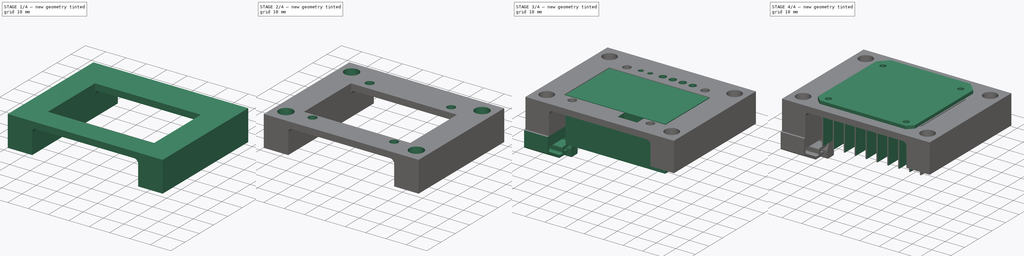
[diagram: build sequence overview — one tinted view per stage of 4, left to right]
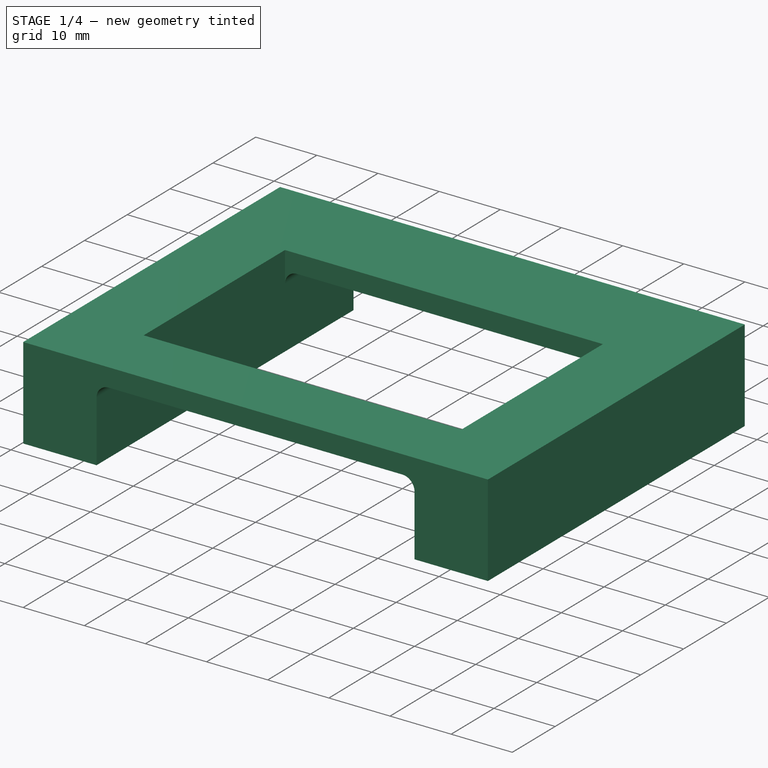
[diagram: stage 1 of 4 — iso view after this stage's code; geometry added in this stage tinted green]
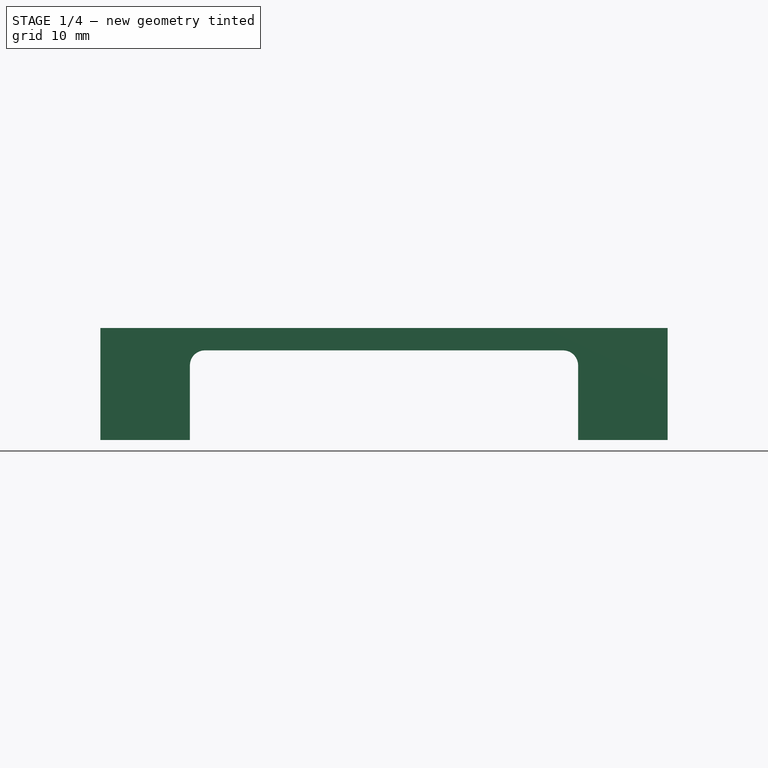
[diagram: stage 1 of 4 — front view after this stage's code; geometry added in this stage tinted green]
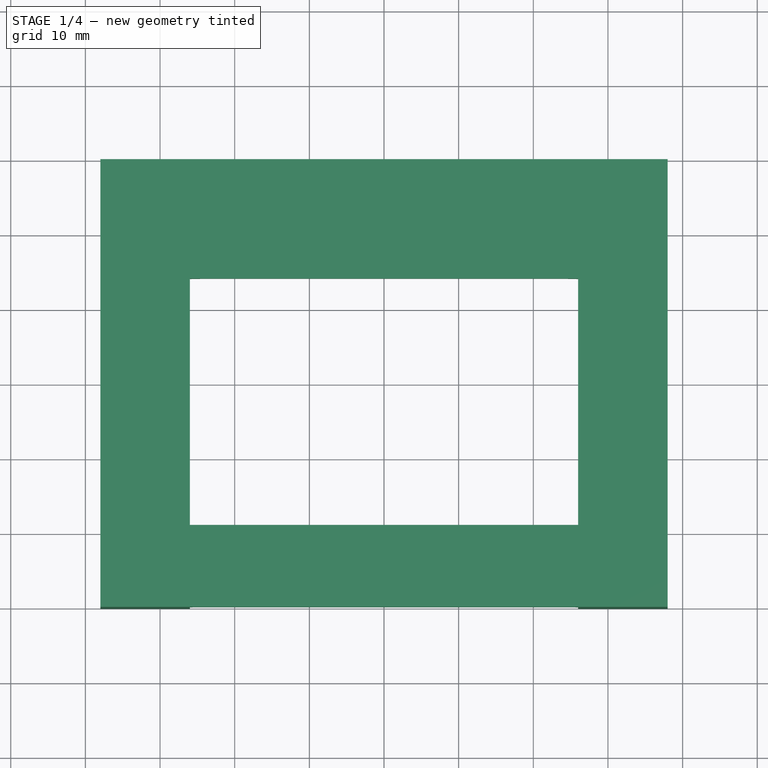
[diagram: stage 1 of 4 — top view after this stage's code; geometry added in this stage tinted green]
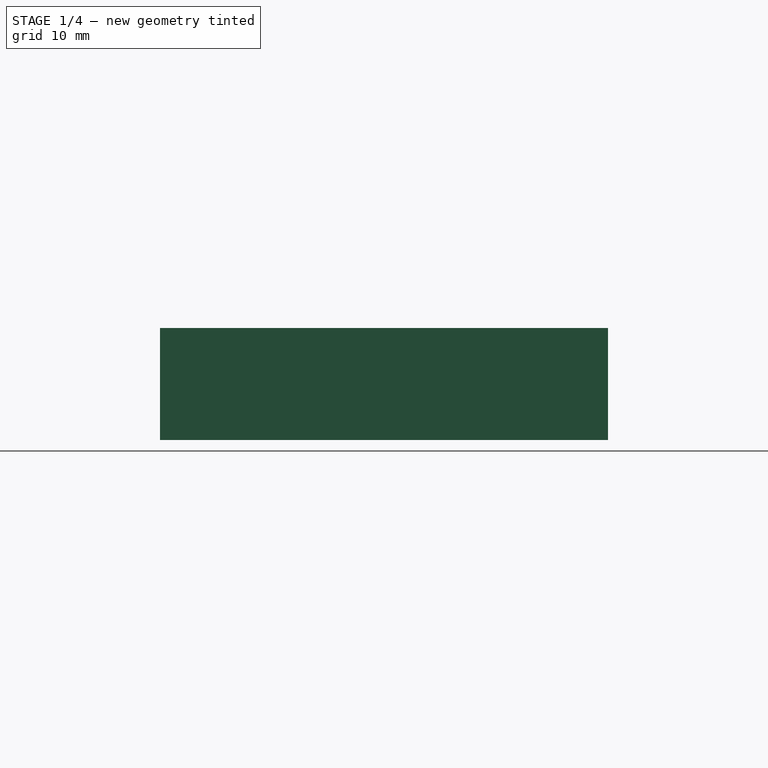
[diagram: stage 1 of 4 — right view after this stage's code; geometry added in this stage tinted green]
FCSTD DOCUMENT  (FreeCAD 1.1R44874 (Git))
Label: driver_holder
License: All rights reserved
LicenseURL: https://en.wikipedia.org/wiki/All_rights_reserved
objects: Sketcher::SketchObject×12, PartDesign::Pocket×7, App::Point×4, PartDesign::Pad×4, PartDesign::Body×4, Part::Feature×1, Part::Refine×1, PartDesign::FeatureBase×1, PartDesign::Hole×1
note: 68 computed .brp shape members not serialized (recipe doc carries the construction recipe); baked Part::Feature solids carry a one-line shape summary decoded from their .brp

FEATURE [App::Point] Origin007  label="Origin009"
  Role = Origin
FEATURE [Sketcher::SketchObject] Sketch004
  ArcFitTolerance = 1e-06
  AttachmentSupport = -> [Origin006]
  ExternalTypes = [0]
  FullyConstrained = true
  MakeInternals = false
  MapMode = 5
  _ExternalGeoVersion = 1
  sketch-geometry (4):
    g0: LineSegment StartX=-38 StartY=30 StartZ=0 EndX=-38 EndY=-30 EndZ=0
    g1: LineSegment StartX=-38 StartY=-30 StartZ=0 EndX=38 EndY=-30 EndZ=0
    g2: LineSegment StartX=38 StartY=-30 StartZ=0 EndX=38 EndY=30 EndZ=0
    g3: LineSegment StartX=38 StartY=30 StartZ=0 EndX=-38 EndY=30 EndZ=0
  constraints (10):
    c: Coincident(g0,g1)
    c: Coincident(g1,g2)
    c: Coincident(g2,g3)
    c: Coincident(g3,g0)
    c: Vertical(g2)
    c: Horizontal(g1)
    c: Symmetric(g0,g2,g-2)
    c: Symmetric(g0,g0,g-1)
    c: DistanceX(g3,g3) = 76
    c: DistanceY(g0,g0) = 60
FEATURE [PartDesign::Pad] Pad002
  Direction = (0,0,1)
  Length = 15
  Length2 = 10
  Profile = -> Sketch004
  ReferenceAxis = -> Sketch004 [N_Axis]
  Refine = true
  Reversed = true
  SideType = 0
  Suppressed = false
  Type = 0
  Type2 = 0
FEATURE [Sketcher::SketchObject] Sketch005
  ArcFitTolerance = 1e-06
  AttachmentSupport = -> [Pad002]
  ExternalTypes = [0]
  FullyConstrained = true
  MakeInternals = false
  MapMode = 5
  Placement = pos=(0,-30,0) rot=(1,0,0;1.5708rad)
  _ExternalGeoVersion = 1
  sketch-geometry (8):
    g0: LineSegment StartX=-26 StartY=-5 StartZ=0 EndX=-26 EndY=-15 EndZ=0
    g1: LineSegment StartX=-26 StartY=-15 StartZ=0 EndX=26 EndY=-15 EndZ=0
    g2: LineSegment StartX=26 StartY=-15 StartZ=0 EndX=26 EndY=-5 EndZ=0
    g3: LineSegment StartX=24 StartY=-3 StartZ=0 EndX=-24 EndY=-3 EndZ=0
    g4: ArcOfCircle CenterX=-24 CenterY=-5 CenterZ=0 NormalX=0 NormalY=0 NormalZ=1 AngleXU=0 Radius=2 StartAngle=1.5708 EndAngle=3.14159
    g5: GeomPoint [constr] X=-26 Y=-3 Z=0
    g6: ArcOfCircle CenterX=24 CenterY=-5 CenterZ=0 NormalX=0 NormalY=0 NormalZ=1 AngleXU=0 Radius=2 StartAngle=0 EndAngle=1.5708
    g7: GeomPoint [constr] X=26 Y=-3 Z=0
  constraints (19):
    c: Coincident(g0,g1)
    c: Coincident(g1,g2)
    c: Vertical(g0)
    c: Vertical(g2)
    c: Horizontal(g1)
    c: Symmetric(g5,g7,g-2)
    c: DistanceX(g5,g7) = 52
    c: DistanceY(g0,g-1) = 15
    c: PointOnObject(g5,g0)
    c: PointOnObject(g5,g3)
    c: Tangent(g0,g4) = -1.5708
    c: Tangent(g3,g4) = -1.5708
    c: PointOnObject(g7,g2)
    c: PointOnObject(g7,g3)
    c: Tangent(g2,g6) = -1.5708
    c: Tangent(g3,g6) = -1.5708
    c: DistanceY(g0,g5) = 12
    c: Diameter(g4) = 4
    c: Equal(g4,g6)
FEATURE [PartDesign::Pocket] Pocket002
  BaseFeature = -> Pad002
  Direction = (0,1,0)
  Length = 5
  Length2 = 5
  Profile = -> Sketch005
  ReferenceAxis = -> Sketch005 [N_Axis]
  Refine = true
  SideType = 0
  Suppressed = false
  Type = 1
  Type2 = 0
FEATURE [Sketcher::SketchObject] Sketch006
  ArcFitTolerance = 1e-06
  AttachmentSupport = -> [Pocket002]
  ExternalGeometry = -> [Pocket002]
  ExternalTypes = [0,0]
  FullyConstrained = true
  MakeInternals = false
  MapMode = 5
  _ExternalGeoVersion = 1
  sketch-geometry (4):
    g0: LineSegment StartX=-26 StartY=14 StartZ=0 EndX=-26 EndY=-19 EndZ=0
    g1: LineSegment StartX=-26 StartY=-19 StartZ=0 EndX=26 EndY=-19 EndZ=0
    g2: LineSegment StartX=26 StartY=-19 StartZ=0 EndX=26 EndY=14 EndZ=0
    g3: LineSegment StartX=26 StartY=14 StartZ=0 EndX=-26 EndY=14 EndZ=0
  constraints (12):
    c: Coincident(g0,g1)
    c: Coincident(g1,g2)
    c: Coincident(g2,g3)
    c: Coincident(g3,g0)
    c: Vertical(g0)
    c: Vertical(g2)
    c: Horizontal(g1)
    c: Horizontal(g3)
    c: PointOnObject(g2,g-4)
    c: PointOnObject(g0,g-3)
    c: DistanceY(g-1,g0) = 14
    c: DistanceY(g0,g0) = 33
FEATURE [PartDesign::Pocket] Pocket003
  BaseFeature = -> Pocket002
  Direction = (0,0,-1)
  Length = 5
  Length2 = 5
  Profile = -> Sketch006
  ReferenceAxis = -> Sketch006 [N_Axis]
  Refine = true
  SideType = 0
  Suppressed = false
  Type = 1
  Type2 = 0
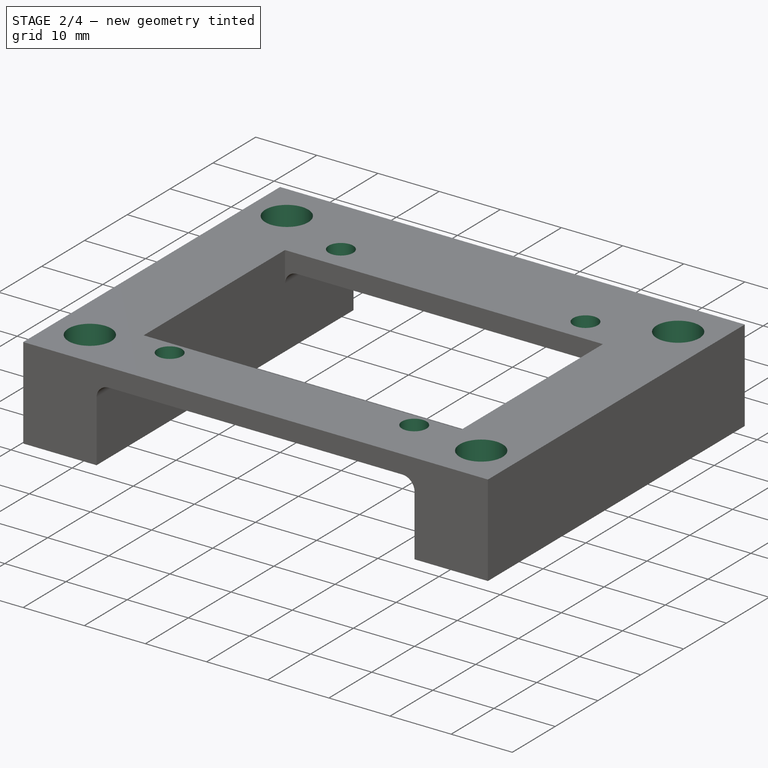
[diagram: stage 2 of 4 — iso view after this stage's code; geometry added in this stage tinted green]
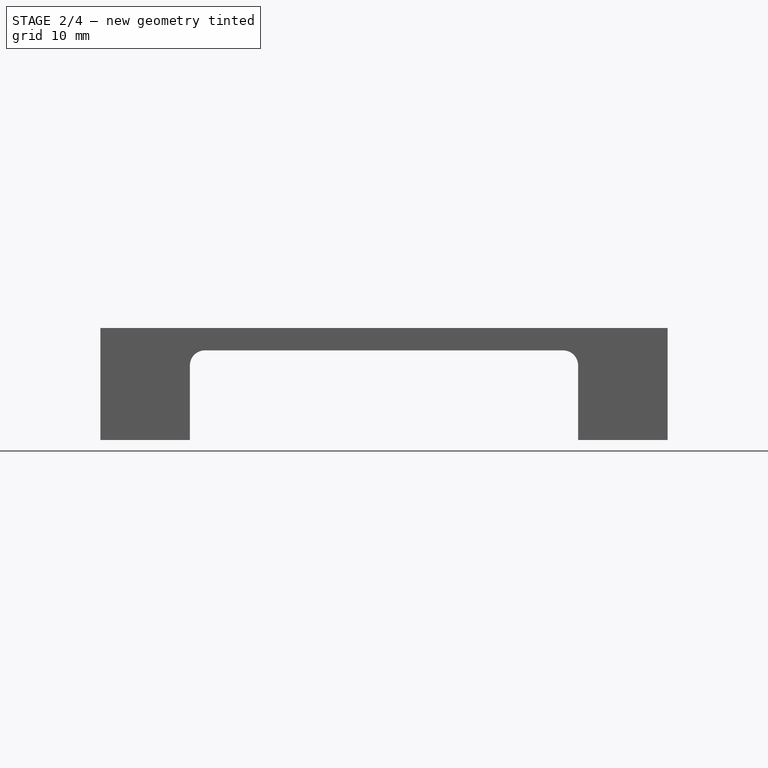
[diagram: stage 2 of 4 — front view after this stage's code; geometry added in this stage tinted green]
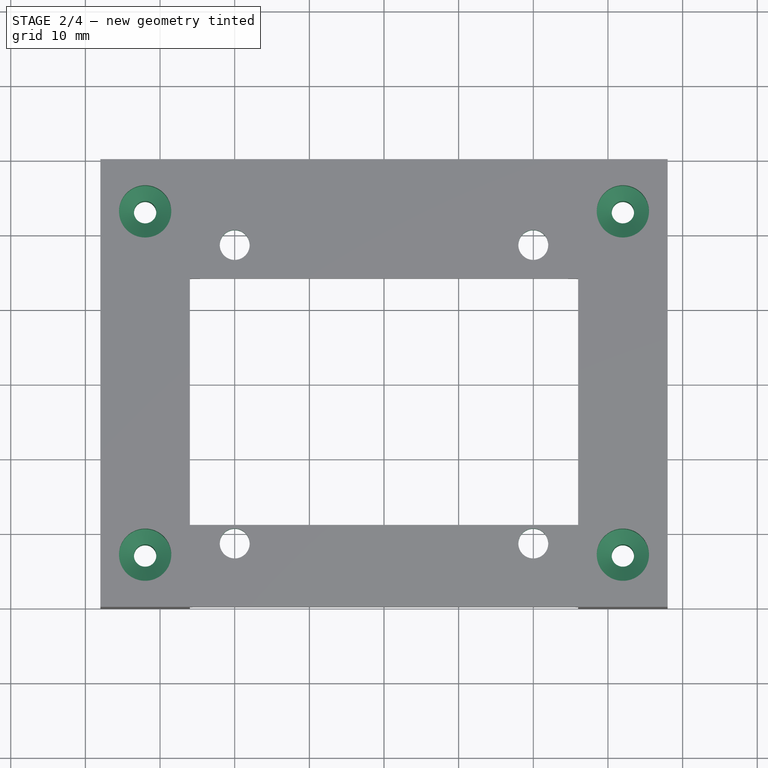
[diagram: stage 2 of 4 — top view after this stage's code; geometry added in this stage tinted green]
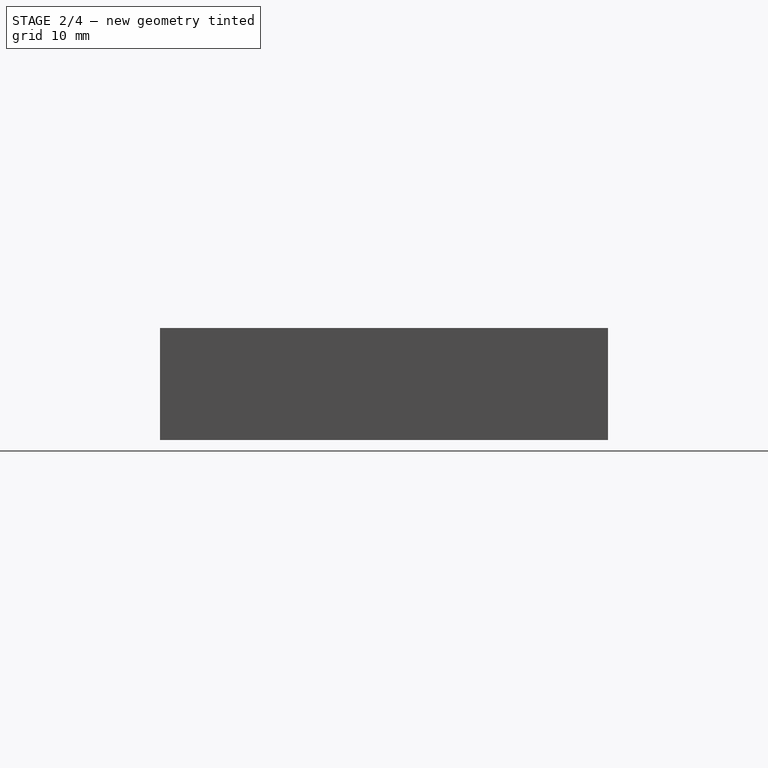
[diagram: stage 2 of 4 — right view after this stage's code; geometry added in this stage tinted green]
FEATURE [Sketcher::SketchObject] Sketch007
  ArcFitTolerance = 1e-06
  AttachmentSupport = -> [Pocket003]
  ExternalTypes = [0]
  FullyConstrained = true
  MakeInternals = false
  MapMode = 5
  _ExternalGeoVersion = 1
  sketch-geometry (4):
    g0: Circle CenterX=-20 CenterY=18.5 CenterZ=0 NormalX=0 NormalY=0 NormalZ=1 AngleXU=0 Radius=2
    g1: Circle CenterX=20 CenterY=18.5 CenterZ=0 NormalX=0 NormalY=0 NormalZ=1 AngleXU=0 Radius=2
    g2: Circle CenterX=-20 CenterY=-21.5 CenterZ=0 NormalX=0 NormalY=0 NormalZ=1 AngleXU=0 Radius=2
    g3: Circle CenterX=20 CenterY=-21.5 CenterZ=0 NormalX=0 NormalY=0 NormalZ=1 AngleXU=0 Radius=2
  constraints (10):
    c: DistanceX(g0,g1) = 40
    c: Symmetric(g0,g1,g-2)
    c: DistanceY(g2,g0) = 40
    c: Symmetric(g2,g3,g-2)
    c: DistanceY(g-1,g0) = 18.5
    c: Diameter(g0) = 4
    c: Equal(g0,g1)
    c: Vertical(g2,g0)
    c: Diameter(g2) = 4
    c: Equal(g2,g3)
FEATURE [PartDesign::Pocket] Pocket004
  BaseFeature = -> Pocket003
  Direction = (0,0,-1)
  Length = 5
  Length2 = 5
  Profile = -> Sketch007
  ReferenceAxis = -> Sketch007 [N_Axis]
  Refine = true
  SideType = 0
  Suppressed = false
  Type = 1
  Type2 = 0
FEATURE [Sketcher::SketchObject] Sketch008
  ArcFitTolerance = 1e-06
  AttachmentSupport = -> [Pocket004]
  ExternalTypes = [0]
  FullyConstrained = true
  MakeInternals = false
  MapMode = 5
  Placement = pos=(0,0,-15) rot=(1,0,0;3.14159rad)
  _ExternalGeoVersion = 1
  sketch-geometry (4):
    g0: Circle CenterX=-32 CenterY=23 CenterZ=0 NormalX=0 NormalY=0 NormalZ=1 AngleXU=0 Radius=1.5
    g1: Circle CenterX=-32 CenterY=-23 CenterZ=0 NormalX=0 NormalY=0 NormalZ=1 AngleXU=0 Radius=1.5
    g2: Circle CenterX=32 CenterY=-23 CenterZ=0 NormalX=0 NormalY=0 NormalZ=1 AngleXU=0 Radius=1.5
    g3: Circle CenterX=32 CenterY=23 CenterZ=0 NormalX=0 NormalY=0 NormalZ=1 AngleXU=0 Radius=1.5
  constraints (11):
    c: Symmetric(g0,g3,g-2)
    c: Symmetric(g1,g2,g-2)
    c: DistanceX(g0,g3) = 64
    c: Equal(g0,g3)
    c: Equal(g0,g1)
    c: Equal(g0,g2)
    c: Vertical(g0,g1)
    c: DistanceY(g1,g0) = 46
    c: DistanceY(g1,g0) = 46
    c: DistanceY(g-1,g0) = 23
    c: Diameter(g0) = 3
FEATURE [PartDesign::Pocket] Pocket005
  BaseFeature = -> Pocket004
  Direction = (0,0,1)
  Length = 5
  Length2 = 5
  Profile = -> Sketch008
  ReferenceAxis = -> Sketch008 [N_Axis]
  Refine = true
  SideType = 0
  Suppressed = false
  Type = 1
  Type2 = 0
FEATURE [PartDesign::Body] Body002  label="din_clip2"
  AllowCompound = false
  Group = -> [Clone,Sketch009,Pad003]
  Origin = -> Origin004
  Placement = pos=(64,1,0) rot=(0,0,1;0rad)
  Tip = -> Pad003
FEATURE [Sketcher::SketchObject] Sketch010
  ArcFitTolerance = 1e-06
  AttachmentSupport = -> [Pocket005]
  ExternalGeometry = -> [Pocket005]
  ExternalTypes = [0,0,0,0]
  FullyConstrained = true
  MakeInternals = false
  MapMode = 5
  _ExternalGeoVersion = 1
  sketch-geometry (4):
    g0: Circle CenterX=-32 CenterY=23 CenterZ=0 NormalX=0 NormalY=0 NormalZ=1 AngleXU=0 Radius=3.5
    g1: Circle CenterX=32 CenterY=23 CenterZ=0 NormalX=0 NormalY=0 NormalZ=1 AngleXU=0 Radius=3.5
    g2: Circle CenterX=32 CenterY=-23 CenterZ=0 NormalX=0 NormalY=0 NormalZ=1 AngleXU=0 Radius=3.5
    g3: Circle CenterX=-32 CenterY=-23 CenterZ=0 NormalX=0 NormalY=0 NormalZ=1 AngleXU=0 Radius=3.5
  constraints (8):
    c: Coincident(g0,g-3)
    c: Coincident(g1,g-4)
    c: Coincident(g2,g-5)
    c: Coincident(g3,g-6)
    c: Diameter(g0) = 7
    c: Equal(g0,g1)
    c: Equal(g0,g3)
    c: Equal(g0,g2)
FEATURE [PartDesign::Hole] Hole
  BaseFeature = -> Pocket005
  BaseProfileType = 7
  CustomThreadClearance = 0
  Depth = 5
  DepthType = 0
  Diameter = 7
  DrillForDepth = false
  DrillPoint = 1
  DrillPointAngle = 118
  HoleCutCountersinkAngle = 90
  HoleCutCustomValues = false
  HoleCutDepth = 0
  HoleCutDiameter = 0
  HoleCutType = 0
  ModelThread = false
  Profile = -> Sketch010
  Refine = true
  Suppressed = false
  Tapered = false
  TaperedAngle = 90
  ThreadClass = 0
  ThreadDepth = 5
  ThreadDepthType = 0
  ThreadDiameter = 7
  ThreadDirection = 0
  ThreadFit = 0
  ThreadSize = 0
  ThreadType = 0
  Threaded = false
  UseCustomThreadClearance = false
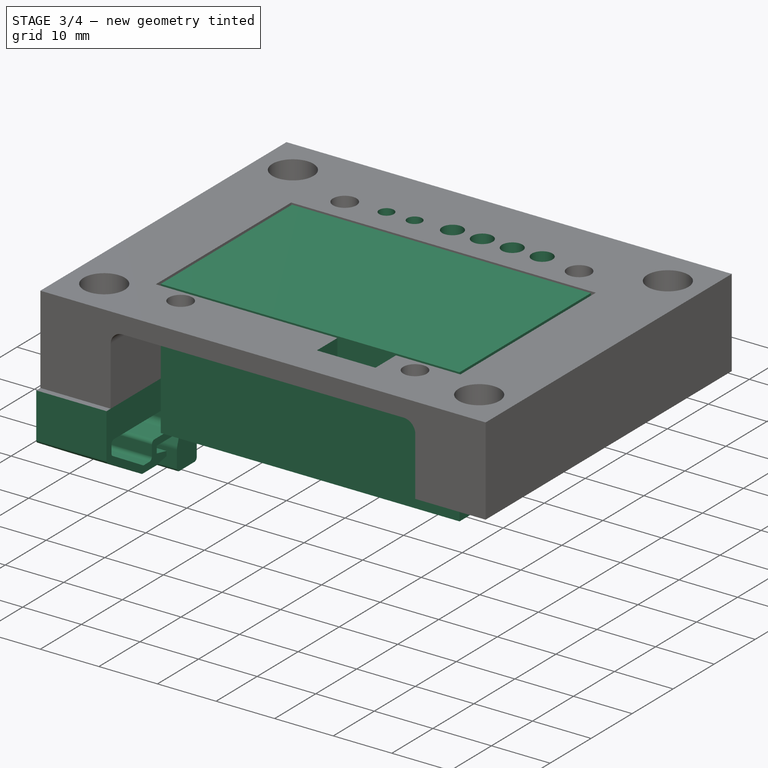
[diagram: stage 3 of 4 — iso view after this stage's code; geometry added in this stage tinted green]
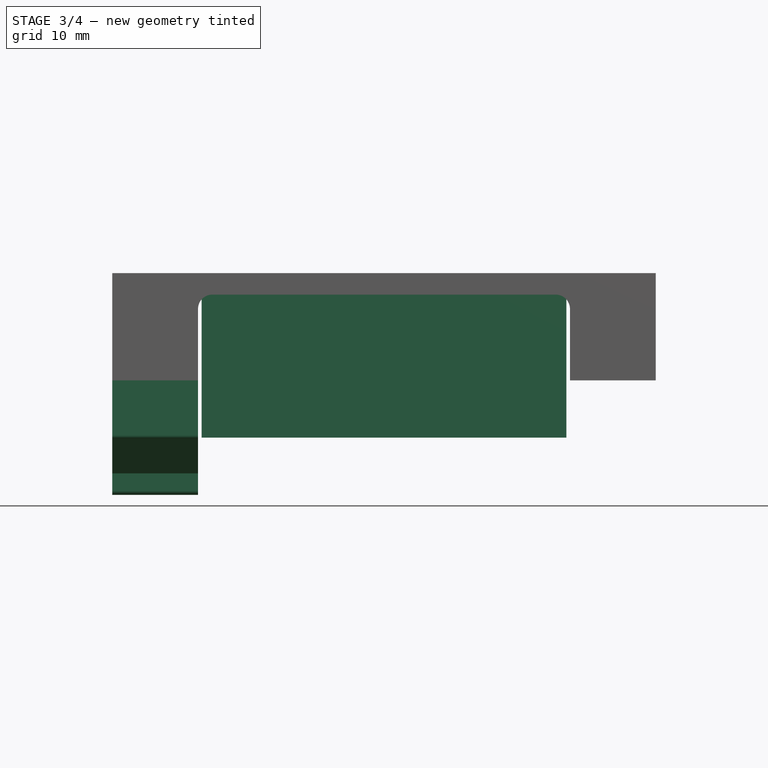
[diagram: stage 3 of 4 — front view after this stage's code; geometry added in this stage tinted green]
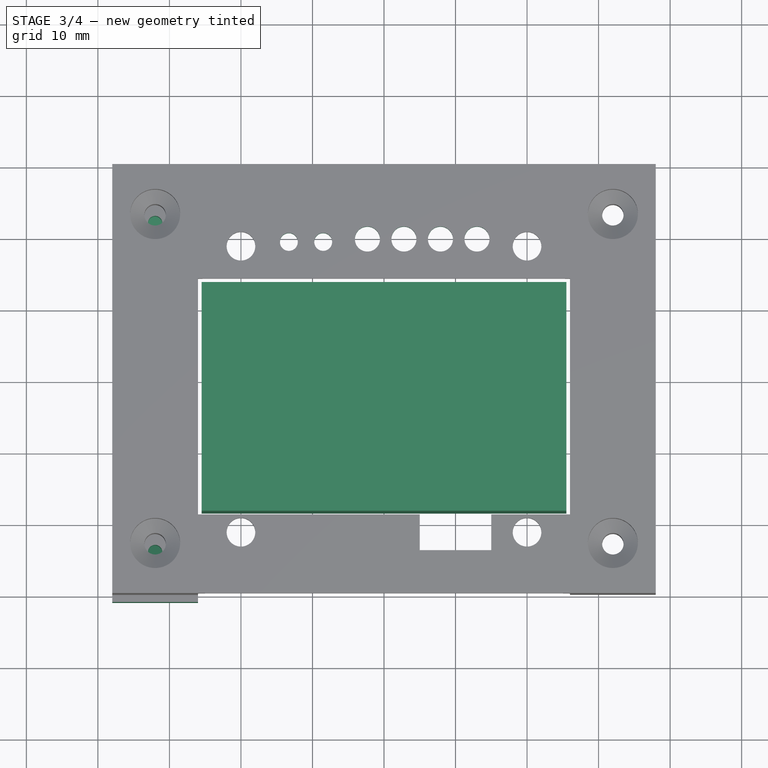
[diagram: stage 3 of 4 — top view after this stage's code; geometry added in this stage tinted green]
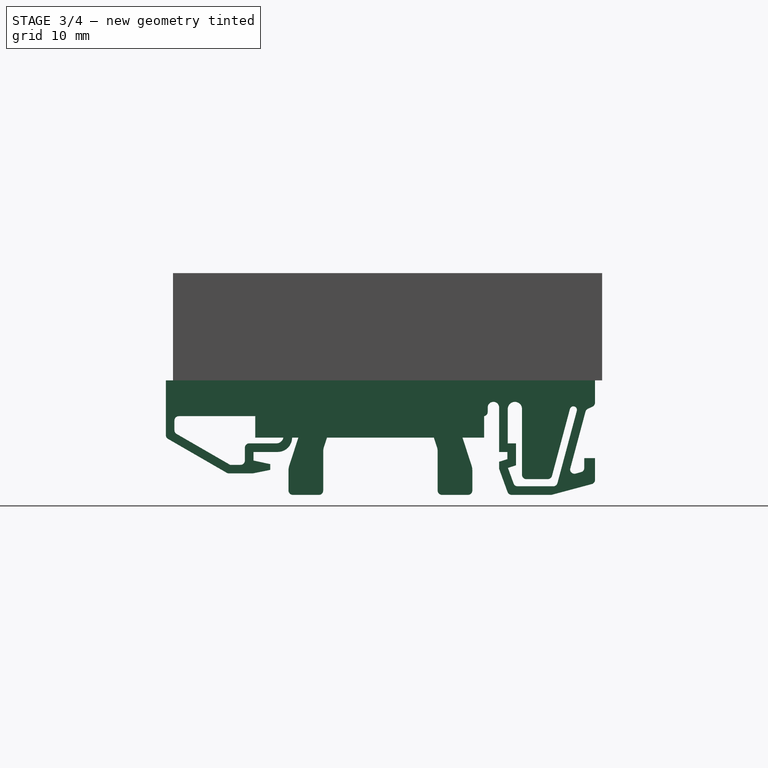
[diagram: stage 3 of 4 — right view after this stage's code; geometry added in this stage tinted green]
FEATURE [PartDesign::Body] Body  label="PCB"
  AllowCompound = false
  Group = -> [Sketch,Pad,Sketch001,Pocket]
  Origin = -> Origin
  Tip = -> Pocket
FEATURE [App::Point] Origin003
  Role = Origin
FEATURE [Sketcher::SketchObject] Sketch002
  ArcFitTolerance = 1e-06
  AttachmentSupport = -> [Origin002]
  ExternalTypes = [0]
  FullyConstrained = true
  MakeInternals = false
  MapMode = 5
  _ExternalGeoVersion = 1
  sketch-geometry (4):
    g0: LineSegment StartX=-25.5 StartY=13.5 StartZ=0 EndX=-25.5 EndY=-18.5 EndZ=0
    g1: LineSegment StartX=-25.5 StartY=-18.5 StartZ=0 EndX=25.5 EndY=-18.5 EndZ=0
    g2: LineSegment StartX=25.5 StartY=-18.5 StartZ=0 EndX=25.5 EndY=13.5 EndZ=0
    g3: LineSegment StartX=25.5 StartY=13.5 StartZ=0 EndX=-25.5 EndY=13.5 EndZ=0
  constraints (11):
    c: Coincident(g0,g1)
    c: Coincident(g1,g2)
    c: Coincident(g2,g3)
    c: Coincident(g3,g0)
    c: Vertical(g0)
    c: Vertical(g2)
    c: Horizontal(g1)
    c: DistanceX(g3,g3) = 51
    c: Symmetric(g0,g2,g-2)
    c: DistanceY(g0,g0) = 32
    c: DistanceY(g0,g-1) = 18.5
FEATURE [PartDesign::Pad] Pad001
  Direction = (0,0,1)
  Length = 23
  Length2 = 10
  Profile = -> Sketch002
  ReferenceAxis = -> Sketch002 [N_Axis]
  Refine = true
  Reversed = true
  SideType = 0
  Suppressed = false
  Type = 0
  Type2 = 0
FEATURE [PartDesign::Body] Body001  label="Heatsink"
  AllowCompound = false
  Group = -> [Sketch002,Pad001,Sketch003,Pocket001]
  Origin = -> Origin002
  Tip = -> Pocket001
FEATURE [Part::Feature] dins_clip001_solid  label="dins_clip001 (Solid)"
  shape: bbox 60 x 16 x 12 mm, 3866 faces (baked)
FEATURE [Part::Refine] dins_clip001_solid001  label="din_clip1"
  Placement = pos=(-26,30,-31) rot=(-0.57735,0.57735,0.57735;4.18879rad)
  Source = -> dins_clip001_solid
FEATURE [App::Point] Origin005  label="Origin006"
  Role = Origin
FEATURE [PartDesign::FeatureBase] Clone
  BaseFeature = -> dins_clip001_solid001
  Placement = pos=(-26,29,-31) rot=(-0.57735,0.57735,0.57735;4.18879rad)
  Suppressed = false
FEATURE [Sketcher::SketchObject] Sketch009
  ArcFitTolerance = 1e-06
  AttachmentSupport = -> [Clone]
  ExternalTypes = [0]
  FullyConstrained = true
  MakeInternals = false
  MapMode = 5
  Placement = pos=(-26,29,-15) rot=(0,0,1;1.5708rad)
  _ExternalGeoVersion = 1
  sketch-geometry (4):
    g0: Circle CenterX=-53 CenterY=6 CenterZ=0 NormalX=0 NormalY=0 NormalZ=1 AngleXU=0 Radius=1
    g1: Circle CenterX=-7 CenterY=6 CenterZ=0 NormalX=0 NormalY=0 NormalZ=1 AngleXU=0 Radius=1
    g2: Circle CenterX=-53 CenterY=6 CenterZ=0 NormalX=0 NormalY=0 NormalZ=1 AngleXU=0 Radius=2.5
    g3: Circle CenterX=-7 CenterY=6 CenterZ=0 NormalX=0 NormalY=0 NormalZ=1 AngleXU=0 Radius=2.5
  constraints (10):
    c: Horizontal(g0,g1)
    c: DistanceX(g0,g1) = 46
    c: DistanceY(g-1,g1) = 6
    c: DistanceX(g1,g-1) = 7
    c: Coincident(g2,g0)
    c: Coincident(g3,g1)
    c: Diameter(g3) = 5
    c: Equal(g3,g2)
    c: Equal(g1,g0)
    c: Diameter(g1) = 2
FEATURE [PartDesign::Pad] Pad003
  BaseFeature = -> Clone
  Direction = (0,0,1)
  Length = 10
  Length2 = 10
  Placement = pos=(-26,29,-31) rot=(-0.57735,0.57735,0.57735;4.18879rad)
  Profile = -> Sketch009
  ReferenceAxis = -> Sketch009 [N_Axis]
  Refine = true
  Reversed = true
  SideType = 0
  Suppressed = false
  Type = 2
  Type2 = 0
FEATURE [Sketcher::SketchObject] Sketch011
  ArcFitTolerance = 1e-06
  AttachmentSupport = -> [Hole]
  ExternalGeometry = -> [Hole]
  ExternalTypes = [0,0,0,0]
  FullyConstrained = true
  MakeInternals = false
  MapMode = 5
  _ExternalGeoVersion = 1
  sketch-geometry (13):
    g0: Circle CenterX=13 CenterY=19.5 CenterZ=0 NormalX=0 NormalY=0 NormalZ=1 AngleXU=0 Radius=1.75
    g1: Circle CenterX=7.89333 CenterY=19.5 CenterZ=0 NormalX=0 NormalY=0 NormalZ=1 AngleXU=0 Radius=1.75
    g2: Circle CenterX=2.78667 CenterY=19.5 CenterZ=0 NormalX=0 NormalY=0 NormalZ=1 AngleXU=0 Radius=1.75
    g3: Circle CenterX=-2.32 CenterY=19.5 CenterZ=0 NormalX=0 NormalY=0 NormalZ=1 AngleXU=0 Radius=1.75
    g4: LineSegment [constr] StartX=-2.32 StartY=19.5 StartZ=0 EndX=2.78667 EndY=19.5 EndZ=0
    g5: LineSegment [constr] StartX=2.78667 StartY=19.5 StartZ=0 EndX=7.89333 EndY=19.5 EndZ=0
    g6: LineSegment [constr] StartX=7.89333 StartY=19.5 StartZ=0 EndX=13 EndY=19.5 EndZ=0
    g7: Circle CenterX=-13.3 CenterY=19.1 CenterZ=0 NormalX=0 NormalY=0 NormalZ=1 AngleXU=0 Radius=1.25
    g8: Circle CenterX=-8.5 CenterY=19.1 CenterZ=0 NormalX=0 NormalY=0 NormalZ=1 AngleXU=0 Radius=1.25
    g9: LineSegment StartX=5 StartY=-19 StartZ=0 EndX=5 EndY=-24 EndZ=0
    g10: LineSegment StartX=5 StartY=-24 StartZ=0 EndX=15 EndY=-24 EndZ=0
    g11: LineSegment StartX=15 StartY=-24 StartZ=0 EndX=15 EndY=-19 EndZ=0
    g12: LineSegment StartX=15 StartY=-19 StartZ=0 EndX=5 EndY=-19 EndZ=0
  constraints (36):
    c: Horizontal(g3,g2)
    c: Horizontal(g2,g1)
    c: Horizontal(g1,g0)
    c: Equal(g3,g2)
    c: Equal(g2,g1)
    c: Equal(g1,g0)
    c: DistanceX(g3,g0) = 15.32
    c: Coincident(g4,g3)
    c: Coincident(g4,g2)
    c: Coincident(g5,g2)
    c: Coincident(g5,g1)
    c: Coincident(g6,g1)
    c: Coincident(g6,g0)
    c: Equal(g4,g5)
    c: Equal(g5,g6)
    c: DistanceX(g0,g-4) = 7
    c: Diameter(g3) = 3.5
    c: DistanceY(g-4,g0) = 1
    c: Horizontal(g7,g8)
    c: Equal(g7,g8)
    c: DistanceX(g7,g8) = 4.8
    c: DistanceX(g-3,g7) = 6.7
    c: DistanceY(g-3,g7) = 0.6
    c: Diameter(g7) = 2.5
    c: Coincident(g9,g10)
    c: Coincident(g10,g11)
    c: Coincident(g11,g12)
    c: Coincident(g12,g9)
    c: Vertical(g9)
    c: Vertical(g11)
    c: Horizontal(g10)
    c: Horizontal(g12)
    c: DistanceX(g12,g12) = 10
    c: DistanceY(g11,g11) = 5
    c: DistanceX(g11,g-5) = 5
    c: DistanceY(g-5,g11) = 2.5
FEATURE [PartDesign::Pocket] Pocket006
  BaseFeature = -> Hole
  Direction = (0,0,-1)
  Length = 5
  Length2 = 5
  Profile = -> Sketch011
  ReferenceAxis = -> Sketch011 [N_Axis]
  Refine = true
  SideType = 0
  Suppressed = false
  Type = 1
  Type2 = 0
FEATURE [PartDesign::Body] Body003  label="thebody"
  AllowCompound = false
  Group = -> [Sketch004,Pad002,Sketch005,Pocket002,Sketch006,Pocket003,Sketch007,Pocket004,Sketch008,Pocket005,Sketch010,Hole,Sketch011,Pocket006]
  Origin = -> Origin006
  Tip = -> Pocket006
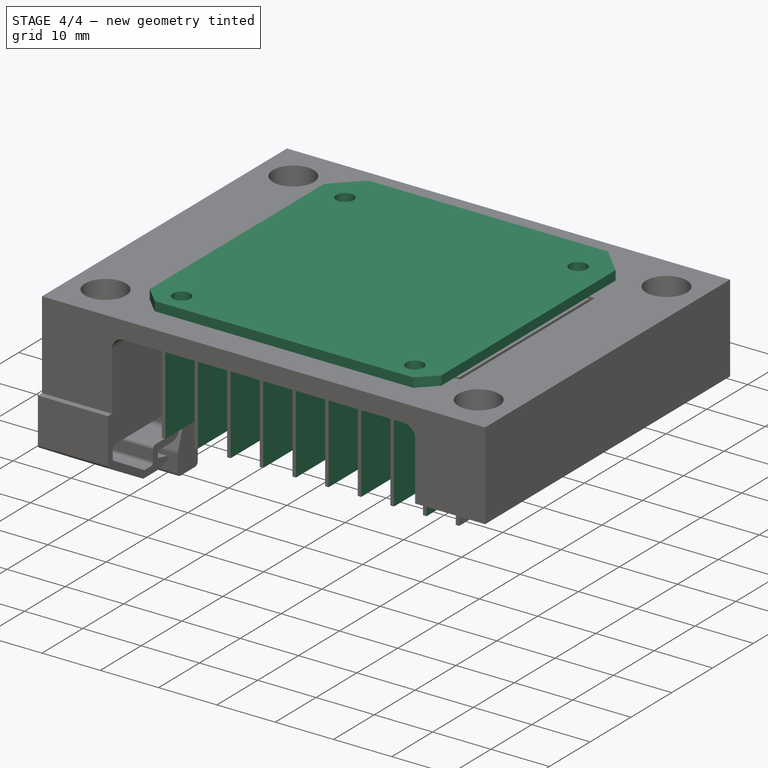
[diagram: stage 4 of 4 — iso view after this stage's code; geometry added in this stage tinted green]
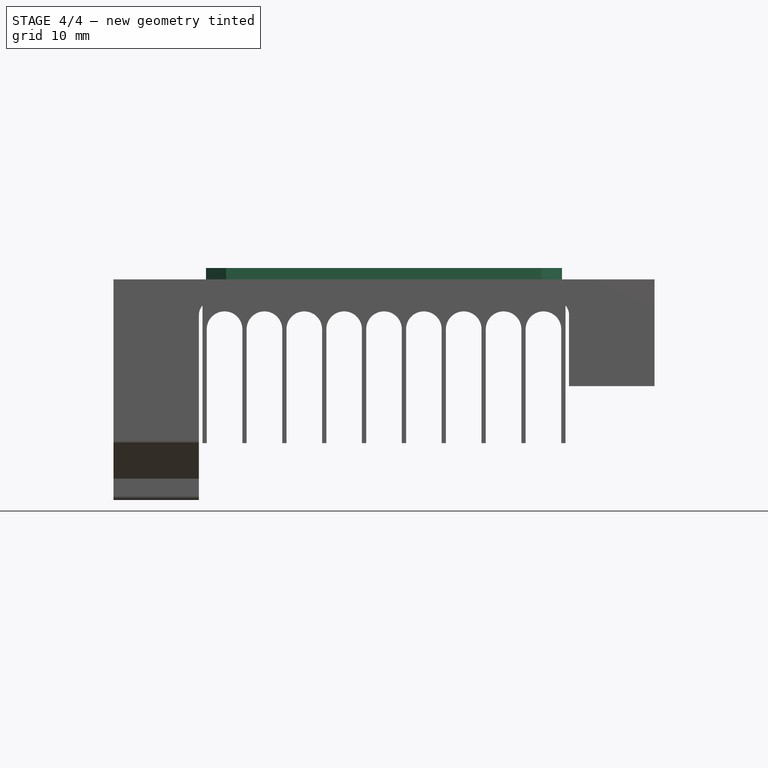
[diagram: stage 4 of 4 — front view after this stage's code; geometry added in this stage tinted green]
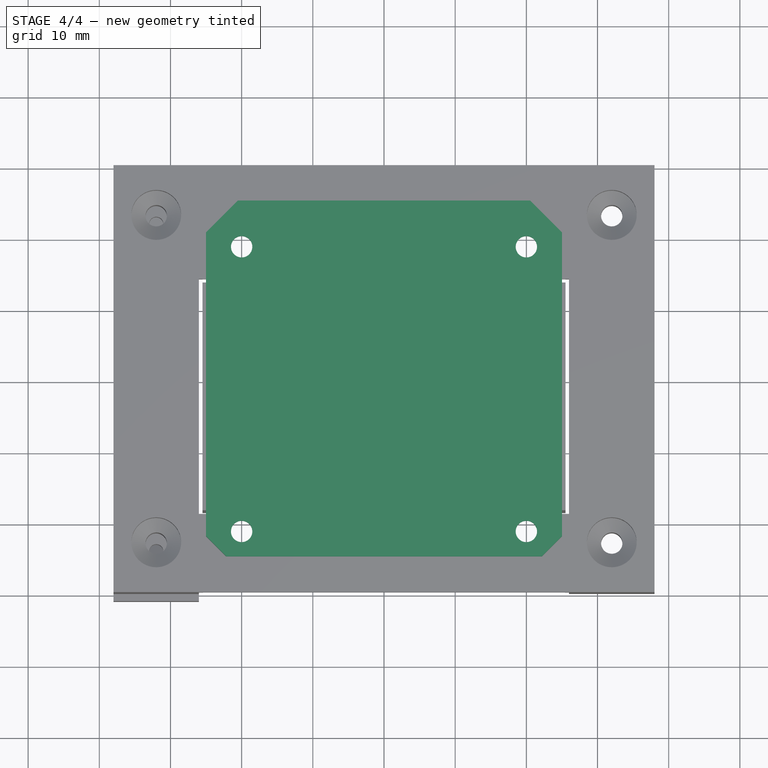
[diagram: stage 4 of 4 — top view after this stage's code; geometry added in this stage tinted green]
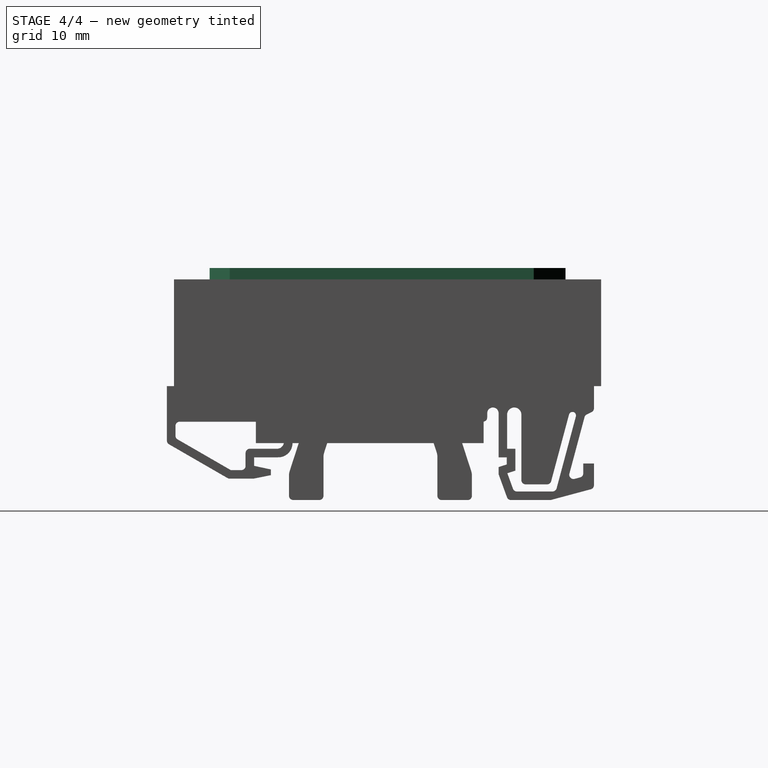
[diagram: stage 4 of 4 — right view after this stage's code; geometry added in this stage tinted green]
FEATURE [App::Point] Origin001
  Role = Origin
FEATURE [Sketcher::SketchObject] Sketch
  ArcFitTolerance = 1e-06
  AttachmentSupport = -> [Origin]
  ExternalTypes = [0]
  FullyConstrained = true
  MakeInternals = false
  MapMode = 5
  _ExternalGeoVersion = 1
  sketch-geometry (16):
    g0: LineSegment StartX=-25 StartY=20.5437 StartZ=0 EndX=-25 EndY=-22.1716 EndZ=0
    g1: LineSegment StartX=-22.1716 StartY=-25 StartZ=0 EndX=22.1716 EndY=-25 EndZ=0
    g2: LineSegment StartX=25 StartY=-22.1716 StartZ=0 EndX=25 EndY=20.5437 EndZ=0
    g3: LineSegment StartX=20.5437 StartY=25 StartZ=0 EndX=-20.5437 EndY=25 EndZ=0
    g4: ArcOfCircle [constr] CenterX=-20.5437 CenterY=20.5437 CenterZ=0 NormalX=0 NormalY=0 NormalZ=1 AngleXU=0 Radius=4.45634 StartAngle=1.5708 EndAngle=3.14159
    g5: GeomPoint [constr] X=-25 Y=25 Z=0
    g6: LineSegment StartX=-20.5437 StartY=25 StartZ=0 EndX=-25 EndY=20.5437 EndZ=0
    g7: ArcOfCircle [constr] CenterX=20.5437 CenterY=20.5437 CenterZ=0 NormalX=0 NormalY=0 NormalZ=1 AngleXU=0 Radius=4.45634 StartAngle=0 EndAngle=1.5708
    g8: GeomPoint [constr] X=25 Y=25 Z=0
    g9: LineSegment StartX=25 StartY=20.5437 StartZ=0 EndX=20.5437 EndY=25 EndZ=0
    g10: ArcOfCircle [constr] CenterX=22.1716 CenterY=-22.1716 CenterZ=0 NormalX=0 NormalY=0 NormalZ=1 AngleXU=0 Radius=2.82843 StartAngle=4.71239 EndAngle=6.28319
    g11: GeomPoint [constr] X=25 Y=-25 Z=0
    g12: LineSegment StartX=22.1716 StartY=-25 StartZ=0 EndX=25 EndY=-22.1716 EndZ=0
    g13: ArcOfCircle [constr] CenterX=-22.1716 CenterY=-22.1716 CenterZ=0 NormalX=0 NormalY=0 NormalZ=1 AngleXU=0 Radius=2.82843 StartAngle=3.14159 EndAngle=4.71239
    g14: GeomPoint [constr] X=-25 Y=-25 Z=0
    g15: LineSegment StartX=-25 StartY=-22.1716 StartZ=0 EndX=-22.1716 EndY=-25 EndZ=0
  constraints (34):
    c: Vertical(g0)
    c: Vertical(g2)
    c: Horizontal(g1)
    c: Horizontal(g3)
    c: DistanceX(g5,g8) = 50
    c: DistanceY(g14,g5) = 50
    c: PointOnObject(g5,g0)
    c: PointOnObject(g5,g3)
    c: Tangent(g0,g4) = -1.5708
    c: Tangent(g3,g4) = -1.5708
    c: Coincident(g6,g0)
    c: Coincident(g6,g3)
    c: PointOnObject(g8,g2)
    c: Tangent(g2,g7) = -1.5708
    c: Tangent(g3,g7) = -1.5708
    c: Coincident(g9,g2)
    c: Coincident(g9,g3)
    c: PointOnObject(g11,g1)
    c: PointOnObject(g11,g2)
    c: Tangent(g1,g10) = -1.5708
    c: Tangent(g2,g10) = -1.5708
    c: Coincident(g12,g1)
    c: Coincident(g12,g2)
    c: PointOnObject(g14,g1)
    c: Tangent(g0,g13) = -1.5708
    c: Tangent(g1,g13) = -1.5708
    c: Coincident(g15,g0)
    c: Coincident(g15,g1)
    c: Distance(g4) = 7
    c: Equal(g6,g9)
    c: Distance(g15) = 4
    c: Equal(g15,g12)
    c: Symmetric(g5,g14,g-1)
    c: Symmetric(g5,g8,g-2)
FEATURE [PartDesign::Pad] Pad
  Direction = (0,0,1)
  Length = 1.6
  Length2 = 10
  Profile = -> Sketch
  ReferenceAxis = -> Sketch [N_Axis]
  Refine = true
  SideType = 0
  Suppressed = false
  Type = 0
  Type2 = 0
FEATURE [Sketcher::SketchObject] Sketch001
  ArcFitTolerance = 1e-06
  AttachmentSupport = -> [Pad]
  ExternalGeometry = -> [Pad]
  ExternalTypes = [0]
  FullyConstrained = true
  MakeInternals = false
  MapMode = 5
  Placement = pos=(0,0,1.6) rot=(0,0,1;0rad)
  _ExternalGeoVersion = 1
  sketch-geometry (4):
    g0: Circle CenterX=-20 CenterY=18.5 CenterZ=0 NormalX=0 NormalY=0 NormalZ=1 AngleXU=0 Radius=1.5
    g1: Circle CenterX=20 CenterY=18.5 CenterZ=0 NormalX=0 NormalY=0 NormalZ=1 AngleXU=0 Radius=1.5
    g2: Circle CenterX=-20 CenterY=-21.5 CenterZ=0 NormalX=0 NormalY=0 NormalZ=1 AngleXU=0 Radius=1.5
    g3: Circle CenterX=20 CenterY=-21.5 CenterZ=0 NormalX=0 NormalY=0 NormalZ=1 AngleXU=0 Radius=1.5
  constraints (10):
    c: DistanceX(g0,g1) = 40
    c: Symmetric(g0,g1,g-2)
    c: Symmetric(g2,g3,g-2)
    c: DistanceY(g2,g0) = 40
    c: Diameter(g2) = 3
    c: Equal(g2,g3)
    c: Equal(g3,g1)
    c: Equal(g1,g0)
    c: DistanceY(g-3,g2) = 3.5
    c: Vertical(g2,g0)
FEATURE [PartDesign::Pocket] Pocket
  BaseFeature = -> Pad
  Direction = (0,0,-1)
  Length = 5
  Length2 = 5
  Profile = -> Sketch001
  ReferenceAxis = -> Sketch001 [N_Axis]
  Refine = true
  SideType = 0
  Suppressed = false
  Type = 1
  Type2 = 0
FEATURE [Sketcher::SketchObject] Sketch003
  ArcFitTolerance = 1e-06
  AttachmentSupport = -> [Pad001]
  ExternalGeometry = -> [Pad001]
  ExternalTypes = [0]
  FullyConstrained = true
  MakeInternals = false
  MapMode = 5
  Placement = pos=(0,-18.5,0) rot=(1,0,0;1.5708rad)
  _ExternalGeoVersion = 1
  sketch-geometry (47):
    g0: LineSegment StartX=-2.5 StartY=-23 StartZ=0 EndX=-2.5 EndY=-7 EndZ=0
    g1: LineSegment StartX=2.5 StartY=-23 StartZ=0 EndX=2.5 EndY=-7 EndZ=0
    g2: ArcOfCircle CenterX=0 CenterY=-7 CenterZ=0 NormalX=0 NormalY=0 NormalZ=1 AngleXU=0 Radius=2.5 StartAngle=0 EndAngle=3.14159
    g3: LineSegment StartX=-2.5 StartY=-23 StartZ=0 EndX=2.5 EndY=-23 EndZ=0
    g4: ArcOfCircle CenterX=-5.6 CenterY=-7 CenterZ=0 NormalX=0 NormalY=0 NormalZ=1 AngleXU=0 Radius=2.5 StartAngle=0 EndAngle=3.14159
    g5: ArcOfCircle CenterX=-11.2 CenterY=-7 CenterZ=0 NormalX=0 NormalY=0 NormalZ=1 AngleXU=0 Radius=2.5 StartAngle=1e-16 EndAngle=3.14159
    g6: ArcOfCircle CenterX=5.6 CenterY=-7 CenterZ=0 NormalX=0 NormalY=0 NormalZ=1 AngleXU=0 Radius=2.5 StartAngle=0 EndAngle=3.14159
    g7: ArcOfCircle CenterX=11.2 CenterY=-7 CenterZ=0 NormalX=0 NormalY=0 NormalZ=1 AngleXU=0 Radius=2.5 StartAngle=0 EndAngle=3.14159
    g8: ArcOfCircle CenterX=16.8 CenterY=-7 CenterZ=0 NormalX=0 NormalY=0 NormalZ=1 AngleXU=0 Radius=2.5 StartAngle=0 EndAngle=3.14159
    g9: ArcOfCircle CenterX=22.4 CenterY=-7 CenterZ=0 NormalX=0 NormalY=0 NormalZ=1 AngleXU=0 Radius=2.5 StartAngle=0 EndAngle=3.14159
    g10: ArcOfCircle CenterX=-16.8 CenterY=-7 CenterZ=0 NormalX=0 NormalY=0 NormalZ=1 AngleXU=0 Radius=2.5 StartAngle=1e-16 EndAngle=3.14159
    g11: ArcOfCircle CenterX=-22.4 CenterY=-7 CenterZ=0 NormalX=0 NormalY=0 NormalZ=1 AngleXU=0 Radius=2.5 StartAngle=0 EndAngle=3.14159
    g12: LineSegment StartX=-13.7 StartY=-7 StartZ=0 EndX=-13.7 EndY=-23 EndZ=0
    g13: LineSegment StartX=-13.7 StartY=-23 StartZ=0 EndX=-8.7 EndY=-23 EndZ=0
    g14: LineSegment StartX=-8.7 StartY=-23 StartZ=0 EndX=-8.7 EndY=-7 EndZ=0
    g15: LineSegment StartX=-8.1 StartY=-7 StartZ=0 EndX=-8.1 EndY=-23 EndZ=0
    g16: LineSegment StartX=-8.1 StartY=-23 StartZ=0 EndX=-3.1 EndY=-23 EndZ=0
    g17: LineSegment StartX=-3.1 StartY=-23 StartZ=0 EndX=-3.1 EndY=-7 EndZ=0
    g18: LineSegment [constr] StartX=-11.2 StartY=-7 StartZ=0 EndX=-5.6 EndY=-7 EndZ=0
    g19: LineSegment [constr] StartX=-5.6 StartY=-7 StartZ=0 EndX=0 EndY=-7 EndZ=0
    g20: LineSegment StartX=-19.3 StartY=-7 StartZ=0 EndX=-19.3 EndY=-23 EndZ=0
    g21: LineSegment StartX=-19.3 StartY=-23 StartZ=0 EndX=-14.3 EndY=-23 EndZ=0
    g22: LineSegment StartX=-14.3 StartY=-23 StartZ=0 EndX=-14.3 EndY=-7 EndZ=0
    g23: LineSegment StartX=3.1 StartY=-7 StartZ=0 EndX=3.1 EndY=-23 EndZ=0
    g24: LineSegment StartX=3.1 StartY=-23 StartZ=0 EndX=8.1 EndY=-23 EndZ=0
    g25: LineSegment StartX=8.1 StartY=-23 StartZ=0 EndX=8.1 EndY=-7 EndZ=0
    g26: LineSegment StartX=8.7 StartY=-7 StartZ=0 EndX=8.7 EndY=-23 EndZ=0
    g27: LineSegment StartX=8.7 StartY=-23 StartZ=0 EndX=13.7 EndY=-23 EndZ=0
    g28: LineSegment StartX=13.7 StartY=-23 StartZ=0 EndX=13.7 EndY=-7 EndZ=0
    g29: LineSegment [constr] StartX=-16.8 StartY=-7 StartZ=0 EndX=-11.2 EndY=-7 EndZ=0
    g30: LineSegment [constr] StartX=0 StartY=-7 StartZ=0 EndX=5.6 EndY=-7 EndZ=0
    g31: LineSegment [constr] StartX=5.6 StartY=-7 StartZ=0 EndX=11.2 EndY=-7 EndZ=0
    g32: LineSegment StartX=-24.9 StartY=-7 StartZ=0 EndX=-24.9 EndY=-23 EndZ=0
    g33: LineSegment StartX=-19.9 StartY=-7 StartZ=0 EndX=-19.9 EndY=-23 EndZ=0
    g34: LineSegment StartX=-19.9 StartY=-23 StartZ=0 EndX=-24.9 EndY=-23 EndZ=0
    g35: LineSegment StartX=14.3 StartY=-7 StartZ=0 EndX=14.3 EndY=-23 EndZ=0
    g36: LineSegment StartX=14.3 StartY=-23 StartZ=0 EndX=19.3 EndY=-23 EndZ=0
    g37: LineSegment StartX=19.3 StartY=-23 StartZ=0 EndX=19.3 EndY=-7 EndZ=0
    g38: LineSegment StartX=19.9 StartY=-7 StartZ=0 EndX=19.9 EndY=-23 EndZ=0
    g39: LineSegment StartX=19.9 StartY=-23 StartZ=0 EndX=24.9 EndY=-23 EndZ=0
    g40: LineSegment StartX=24.9 StartY=-23 StartZ=0 EndX=24.9 EndY=-7 EndZ=0
    g41: LineSegment [constr] StartX=-22.4 StartY=-7 StartZ=0 EndX=-16.8 EndY=-7 EndZ=0
    g42: LineSegment [constr] StartX=11.2 StartY=-7 StartZ=0 EndX=16.8 EndY=-7 EndZ=0
    g43: LineSegment [constr] StartX=16.8 StartY=-7 StartZ=0 EndX=22.4 EndY=-7 EndZ=0
    g44: LineSegment [constr] StartX=-24.9 StartY=-23 StartZ=0 EndX=-25.5 EndY=-23 EndZ=0
    g45: LineSegment [constr] StartX=25.5 StartY=-23 StartZ=0 EndX=24.9 EndY=-23 EndZ=0
    g46: LineSegment [constr] StartX=-19.9 StartY=-23 StartZ=0 EndX=-19.3 EndY=-23 EndZ=0
  constraints (121):
    c: PointOnObject(g0,g-3)
    c: Vertical(g0)
    c: PointOnObject(g1,g-3)
    c: Vertical(g1)
    c: PointOnObject(g2,g-2)
    c: Coincident(g3,g0)
    c: Coincident(g3,g1)
    c: Diameter(g2) = 5
    c: DistanceY(g1,g1) = 16
    c: Tangent(g2,g1) = -1.5708
    c: Tangent(g2,g0) = 1.5708
    c: PointOnObject(g12,g-3)
    c: Vertical(g12)
    c: Coincident(g13,g12)
    c: PointOnObject(g13,g-3)
    c: Coincident(g14,g13)
    c: Vertical(g14)
    c: PointOnObject(g15,g-3)
    c: Vertical(g15)
    c: Coincident(g16,g15)
    c: PointOnObject(g16,g-3)
    c: Coincident(g17,g16)
    c: Vertical(g17)
    c: Tangent(g15,g4) = -1.5708
    c: Tangent(g17,g4) = -1.5708
    c: Tangent(g14,g5) = -1.5708
    c: Tangent(g12,g5) = -1.5708
    c: Horizontal(g4,g2)
    c: Horizontal(g4,g5)
    c: Equal(g2,g4)
    c: Equal(g4,g5)
    c: Coincident(g18,g5)
    c: Coincident(g18,g4)
    c: Coincident(g19,g4)
    c: Coincident(g19,g2)
    c: Equal(g19,g18)
    c: PointOnObject(g20,g-3)
    c: Vertical(g20)
    c: Coincident(g21,g20)
    c: PointOnObject(g21,g-3)
    c: Coincident(g22,g21)
    c: PointOnObject(g23,g-3)
    c: Vertical(g23)
    c: Coincident(g24,g23)
    c: PointOnObject(g24,g-3)
    c: Vertical(g25)
    c: PointOnObject(g26,g-3)
    c: Vertical(g26)
    c: Coincident(g27,g26)
    c: PointOnObject(g27,g-3)
    c: Coincident(g28,g27)
    c: Vertical(g28)
    c: Vertical(g22)
    c: Tangent(g20,g10) = -1.5708
    c: Tangent(g22,g10) = -1.5708
    c: Tangent(g23,g6) = -1.5708
    c: Tangent(g25,g6) = -1.5708
    c: Tangent(g26,g7) = -1.5708
    c: Tangent(g28,g7) = -1.5708
    c: Horizontal(g6,g2)
    c: Horizontal(g7,g6)
    c: Horizontal(g10,g5)
    c: Equal(g10,g2)
    c: Equal(g6,g2)
    c: Equal(g7,g2)
    c: Coincident(g29,g10)
    c: Coincident(g29,g5)
    c: Coincident(g30,g2)
    c: Coincident(g30,g6)
    c: Coincident(g31,g6)
    c: Coincident(g31,g7)
    c: Equal(g19,g30)
    c: Equal(g30,g31)
    c: Equal(g19,g29)
    c: PointOnObject(g32,g-3)
    c: Vertical(g32)
    c: PointOnObject(g33,g-3)
    c: Vertical(g33)
    c: Coincident(g34,g33)
    c: Coincident(g34,g32)
    c: PointOnObject(g35,g-3)
    c: Vertical(g35)
    c: Coincident(g36,g35)
    c: PointOnObject(g36,g-3)
    c: Coincident(g37,g36)
    c: Vertical(g37)
    c: PointOnObject(g38,g-3)
    c: Vertical(g38)
    c: Coincident(g39,g38)
    c: PointOnObject(g39,g-3)
    c: Coincident(g40,g39)
    c: Vertical(g40)
    c: Tangent(g38,g9) = -1.5708
    c: Tangent(g40,g9) = -1.5708
    c: Tangent(g37,g8) = -1.5708
    c: Tangent(g35,g8) = -1.5708
    c: Tangent(g33,g11) = 1.5708
    c: Tangent(g32,g11) = -1.5708
    c: Horizontal(g11,g10)
    c: Horizontal(g7,g8)
    c: Horizontal(g8,g9)
    c: Coincident(g41,g11)
    c: Coincident(g41,g10)
    c: Coincident(g42,g7)
    c: Coincident(g42,g8)
    c: Coincident(g43,g8)
    c: Coincident(g43,g9)
    c: Equal(g2,g11)
    c: Equal(g2,g8)
    c: Equal(g2,g9)
    c: Equal(g30,g42)
    c: Equal(g30,g43)
    c: Equal(g19,g41)
    c: Coincident(g44,g32)
    c: Coincident(g44,g-3)
    c: Coincident(g45,g-3)
    c: Coincident(g45,g39)
    c: Coincident(g24,g25)
    c: Coincident(g46,g33)
    c: Coincident(g46,g20)
    c: Equal(g44,g46)
FEATURE [PartDesign::Pocket] Pocket001
  BaseFeature = -> Pad001
  Direction = (0,1,-2e-16)
  Length = 5
  Length2 = 5
  Profile = -> Sketch003
  ReferenceAxis = -> Sketch003 [N_Axis]
  Refine = true
  SideType = 0
  Suppressed = false
  Type = 1
  Type2 = 0
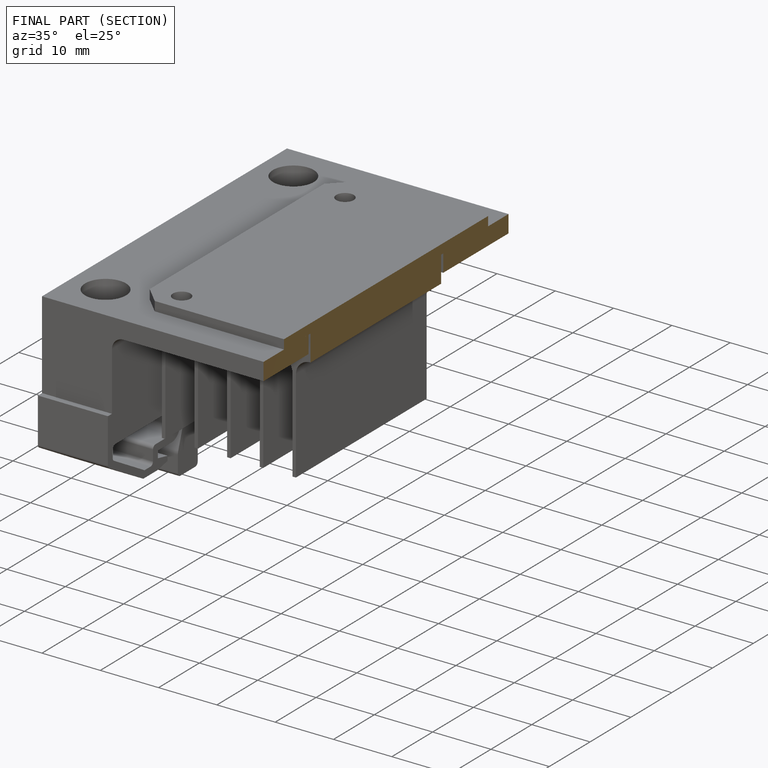
[diagram: finished part — half-section view (interior)]
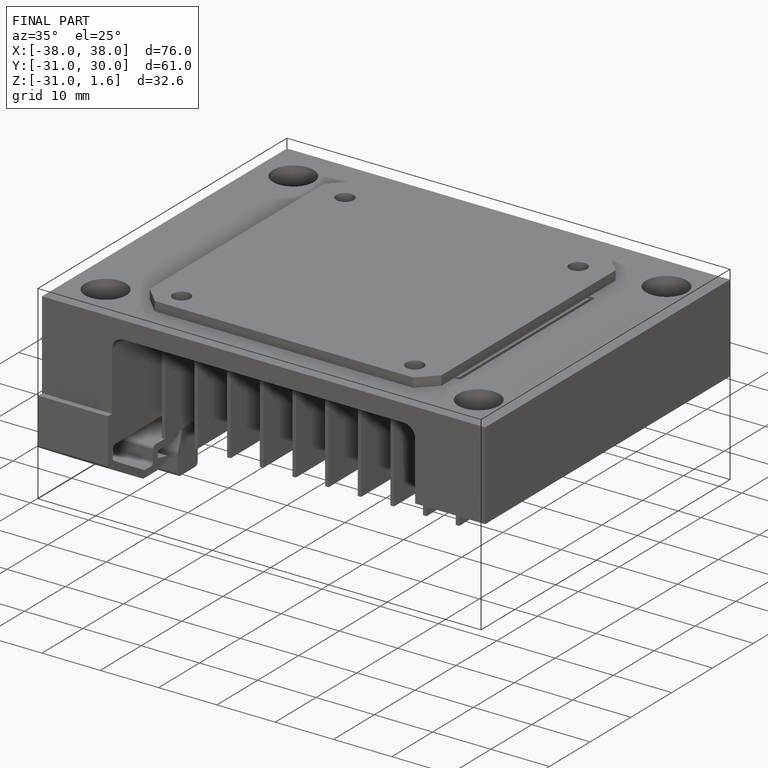
[diagram: finished part — iso view with bounding-box wireframe]
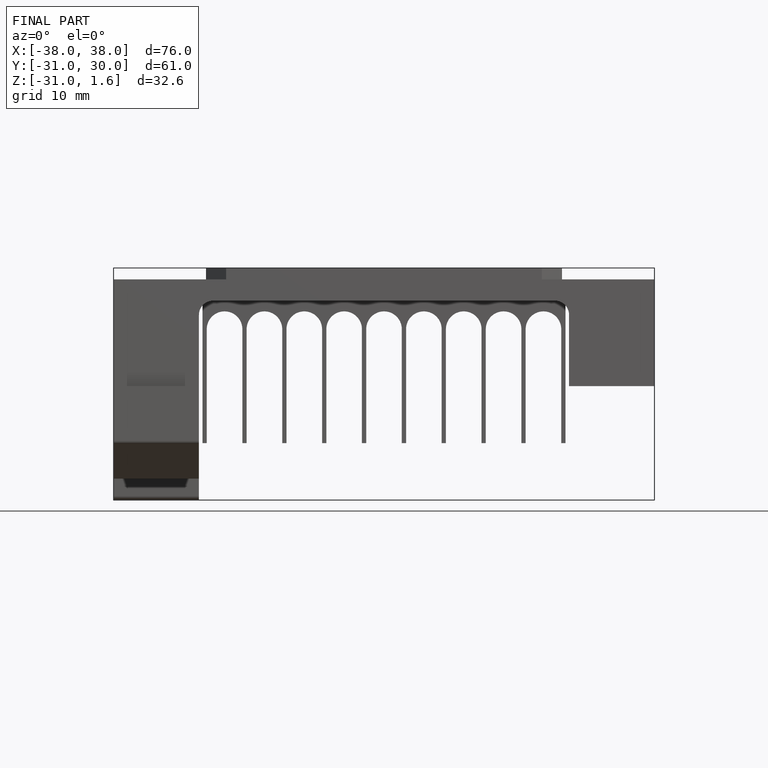
[diagram: finished part — front view with bounding-box wireframe]
